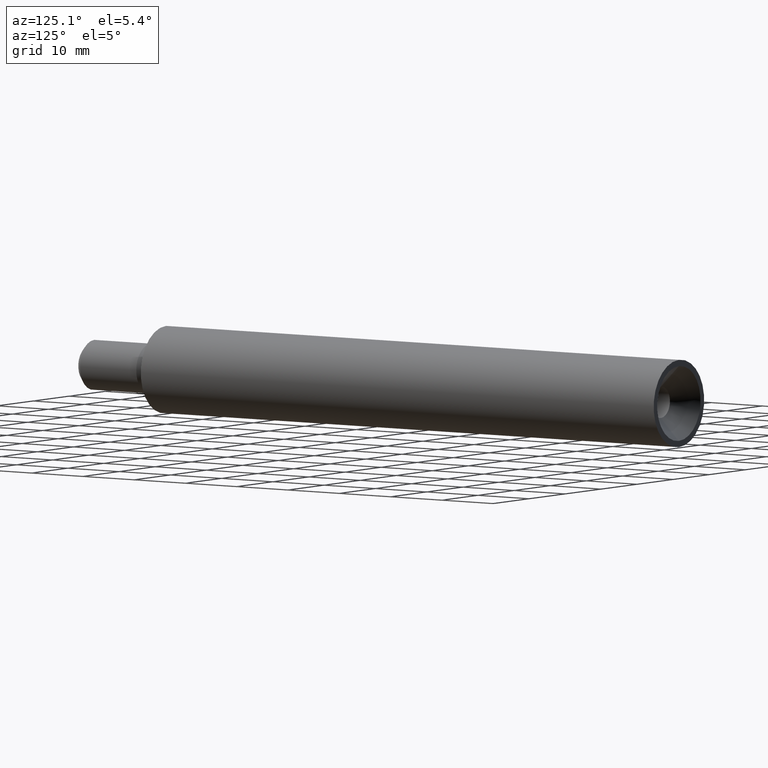
[diagram: clean part render]
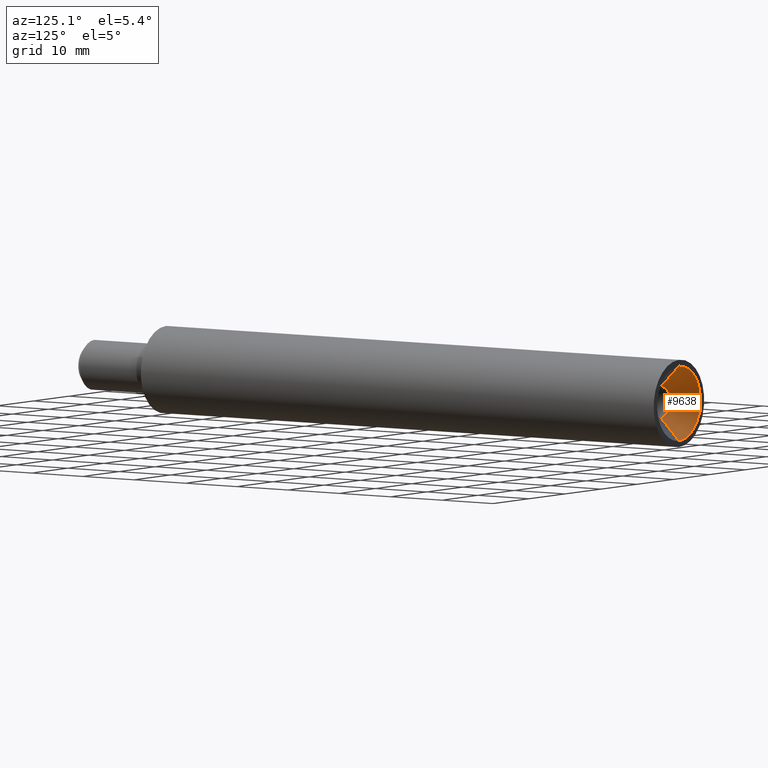
[diagram: same view with one face highlighted and labeled with its STEP entity id]
A machine part, auxiliary view. The second image highlights one B-rep face of the part: STEP entity #9638.
In plain terms, the highlighted conical surface has half-angle 45 deg.
Its self-contained STEP definition (entity closure, byte-faithful):
#445 = CARTESIAN_POINT ( 'NONE',  ( 0.0000000000000000000, 96.50000000000000000, 0.0000000000000000000 ) ) ;
#495 = DIRECTION ( 'NONE',  ( -0.0000000000000000000, 1.000000000000000000, -0.0000000000000000000 ) ) ;
#504 = VERTEX_POINT ( 'NONE', #8497 ) ;
#821 = AXIS2_PLACEMENT_3D ( 'NONE', #13877, #9435, #7057 ) ;
#1746 = ORIENTED_EDGE ( 'NONE', *, *, #13023, .F. ) ;
#1982 = EDGE_LOOP ( 'NONE', ( #6178, #10788, #11202, #1746 ) ) ;
#2229 = FACE_OUTER_BOUND ( 'NONE', #1982, .T. ) ;
#2540 = LINE ( 'NONE', #12237, #10599 ) ;
#3029 = EDGE_CURVE ( 'NONE', #9614, #14259, #6986, .T. ) ;
#3125 = VECTOR ( 'NONE', #4827, 1000.000000000000000 ) ;
#3268 = CARTESIAN_POINT ( 'NONE',  ( 0.0000000000000000000, 100.0000000000000000, 0.0000000000000000000 ) ) ;
#4443 = CIRCLE ( 'NONE', #7648, 2.499999999999997300 ) ;
#4510 = VERTEX_POINT ( 'NONE', #10492 ) ;
#4827 = DIRECTION ( 'NONE',  ( 8.659560562354931600E-017, 0.7071067811865475700, -0.7071067811865474600 ) ) ;
#5149 = EDGE_CURVE ( 'NONE', #504, #4510, #4443, .T. ) ;
#6156 = CONICAL_SURFACE ( 'NONE', #821, 6.000000000000000000, 0.7853981633974482800 ) ;
#6178 = ORIENTED_EDGE ( 'NONE', *, *, #5149, .F. ) ;
#6599 = DIRECTION ( 'NONE',  ( -0.0000000000000000000, 1.000000000000000000, -0.0000000000000000000 ) ) ;
#6657 = CARTESIAN_POINT ( 'NONE',  ( 7.347880794884119700E-016, 100.0000000000000000, -6.000000000000000000 ) ) ;
#6986 = CIRCLE ( 'NONE', #10887, 6.000000000000000000 ) ;
#7057 = DIRECTION ( 'NONE',  ( 0.0000000000000000000, 0.0000000000000000000, 1.000000000000000000 ) ) ;
#7648 = AXIS2_PLACEMENT_3D ( 'NONE', #445, #495, #10820 ) ;
#7773 = DIRECTION ( 'NONE',  ( 0.0000000000000000000, 0.0000000000000000000, 1.000000000000000000 ) ) ;
#8497 = CARTESIAN_POINT ( 'NONE',  ( 5.204748896376249700E-016, 96.50000000000000000, -2.499999999999997300 ) ) ;
#9435 = DIRECTION ( 'NONE',  ( -0.0000000000000000000, 1.000000000000000000, -0.0000000000000000000 ) ) ;
#9614 = VERTEX_POINT ( 'NONE', #6657 ) ;
#9638 = ADVANCED_FACE ( 'NONE', ( #2229 ), #6156, .F. ) ;
#10127 = CARTESIAN_POINT ( 'NONE',  ( 0.0000000000000000000, 100.0000000000000000, 6.000000000000000000 ) ) ;
#10492 = CARTESIAN_POINT ( 'NONE',  ( 0.0000000000000000000, 96.50000000000000000, 2.499999999999997300 ) ) ;
#10599 = VECTOR ( 'NONE', #14660, 1000.000000000000000 ) ;
#10788 = ORIENTED_EDGE ( 'NONE', *, *, #11311, .T. ) ;
#10820 = DIRECTION ( 'NONE',  ( 0.0000000000000000000, 0.0000000000000000000, 1.000000000000000000 ) ) ;
#10887 = AXIS2_PLACEMENT_3D ( 'NONE', #3268, #6599, #7773 ) ;
#11202 = ORIENTED_EDGE ( 'NONE', *, *, #3029, .T. ) ;
#11311 = EDGE_CURVE ( 'NONE', #504, #9614, #12227, .T. ) ;
#11590 = CARTESIAN_POINT ( 'NONE',  ( 7.347880794884119700E-016, 100.0000000000000000, -6.000000000000000000 ) ) ;
#12227 = LINE ( 'NONE', #11590, #3125 ) ;
#12237 = CARTESIAN_POINT ( 'NONE',  ( 0.0000000000000000000, 100.0000000000000000, 6.000000000000000000 ) ) ;
#13023 = EDGE_CURVE ( 'NONE', #4510, #14259, #2540, .T. ) ;
#13877 = CARTESIAN_POINT ( 'NONE',  ( 0.0000000000000000000, 100.0000000000000000, 0.0000000000000000000 ) ) ;
#14259 = VERTEX_POINT ( 'NONE', #10127 ) ;
#14660 = DIRECTION ( 'NONE',  ( 0.0000000000000000000, 0.7071067811865475700, 0.7071067811865474600 ) ) ;